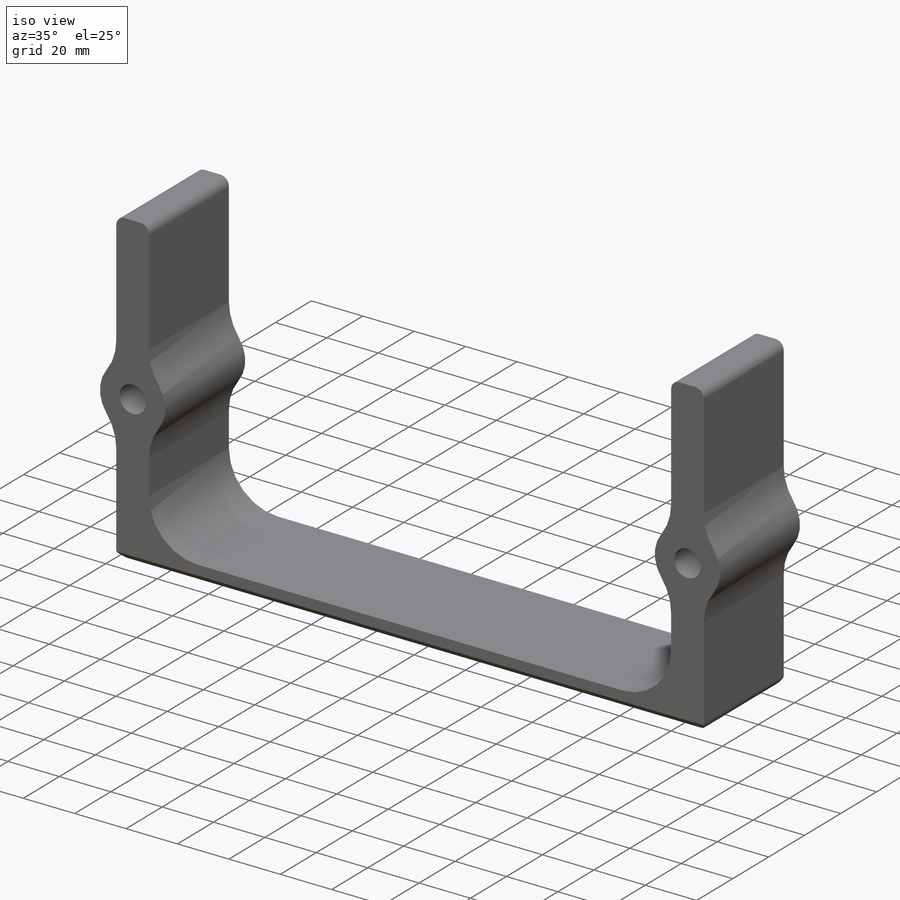
[diagram: iso view]
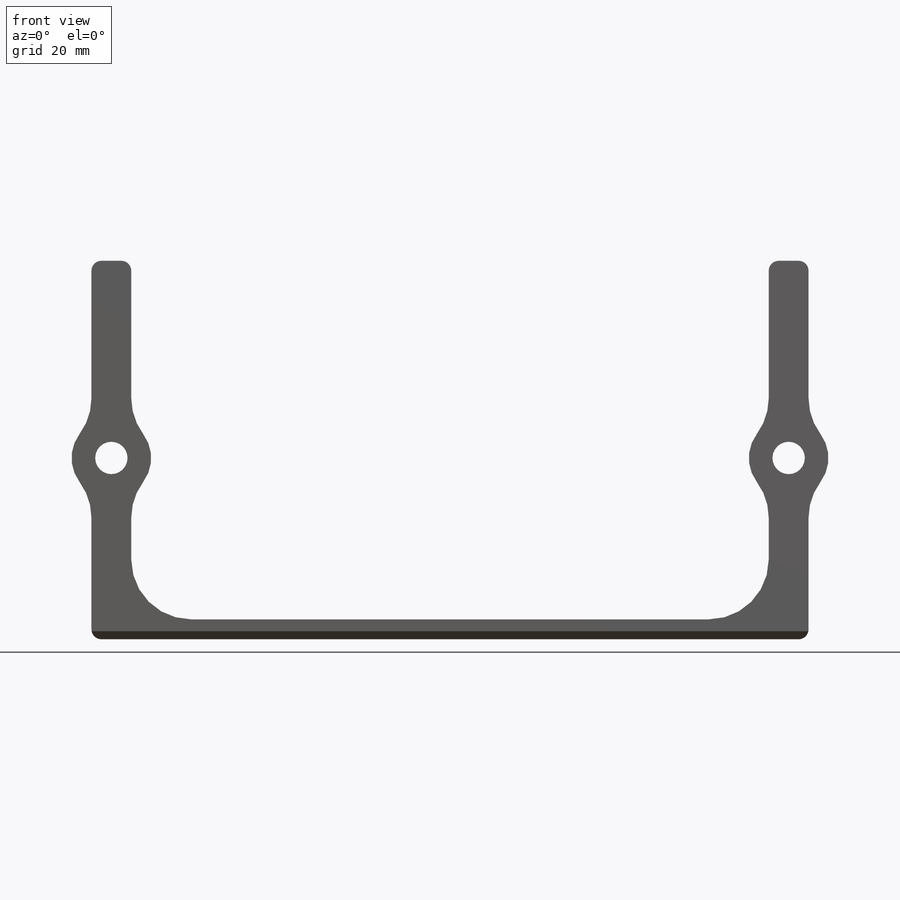
[diagram: front view]
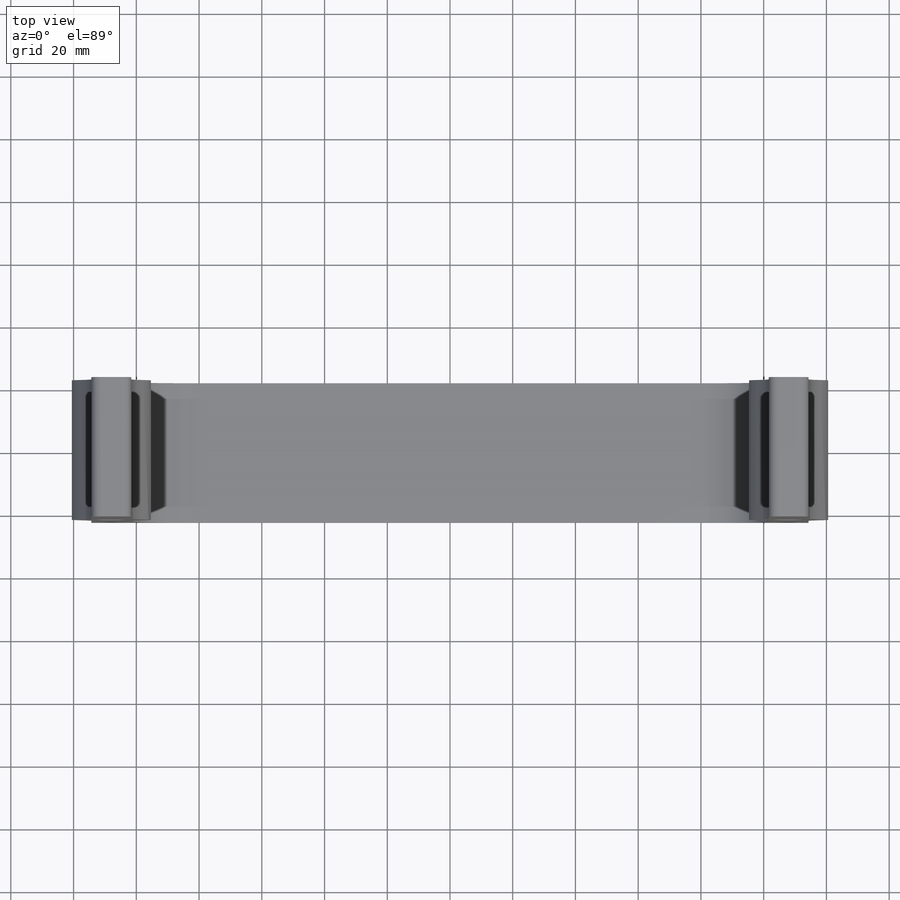
[diagram: top view]
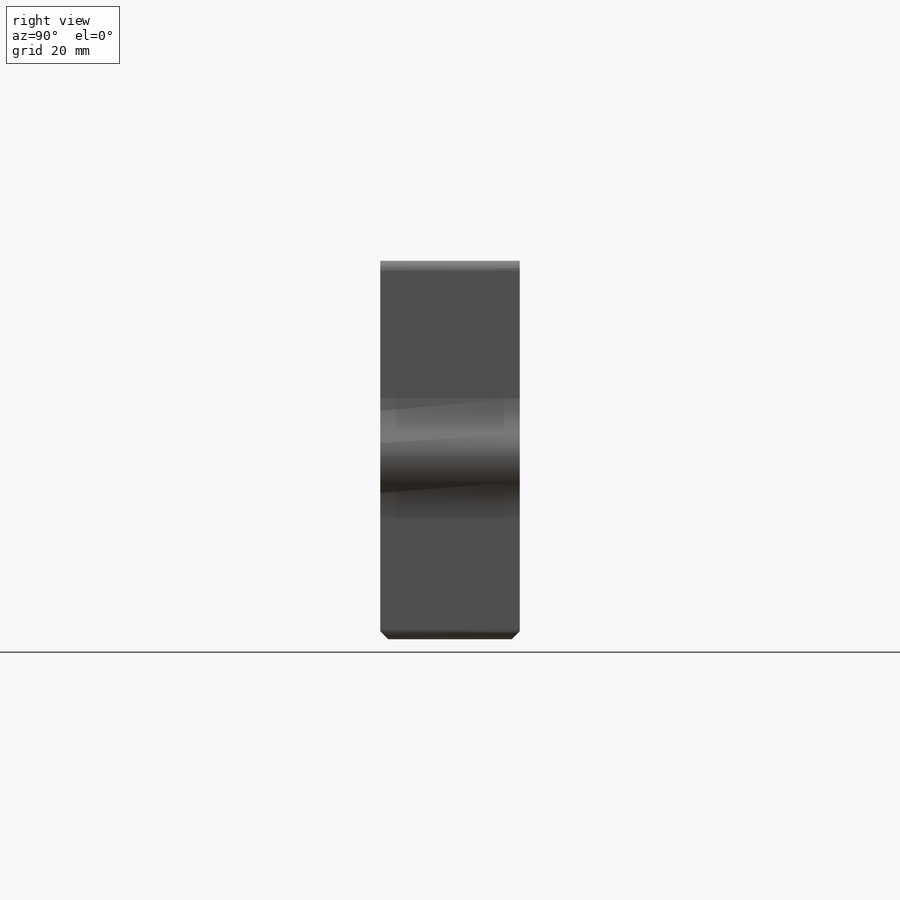
[diagram: right view]
SOLIDWORKS PART (.sldprt)
format: sldprt  version: not decoded by parser v0  size: 310,272 bytes
history: native  units: mm
features: sketch x5, fillet x2, material x1, extrude x1, hole x1, mirror x1, chamfer x1 (+11 scaffold rows collapsed)
feature tree (23):
  scaffold x11  (default folders/planes/origin — collapsed)
  material  "6061-T6 (SS)"
  sketch  "Sketch1"  dims[c1.D1=215.9mm c2.D1=44.45mm c2.D5=6.35mm c2.D6=2.54mm c2.D7=5.0mm]
  sketch  "Sketch2"  dims[c1.D1=120.65mm c2.D1=44.45mm c2.D5=12.7mm c2.D6=2.54mm c2.D7=5.0mm]
  sketch  "Sketch3"  dims[D2=25.4mm D1=57.785mm]
  extrude  "Boss-Extrude1"  [1 undecoded]
  hole  "3/8 Clearance Hole1"  Diameter=10.31748mm Depth=44.45mm
  sketch  "Sketch5"
  sketch  "Sketch4"  dims[hole-wizard template sketch: 59 standard entries collapsed; hole parameters kept: c18.Thru Hole Dia.=~10.31748mm c18.Thru Hole Depth=44.45mm]
  mirror  "Mirror1"
  fillet  "Fillet1"  Radius=3.175mm
  fillet  "Fillet2"  Radius=19.05mm
  chamfer  "Chamfer1"  Distance=2.54mm Angle=45deg
decode coverage: 8 of 11 modeling features carry decoded parameters
note: ~ marks probable driven/reference dimensions
note: 1 parameter value undecoded
note: suppression state not decoded; provenance and decode notes live in map.json
